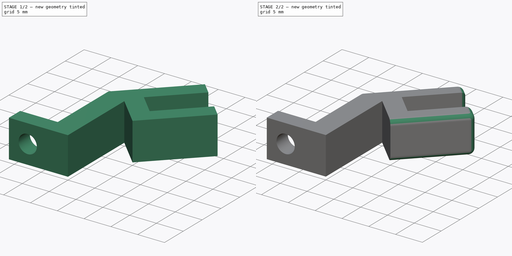
[diagram: build sequence overview — one tinted view per stage of 2, left to right]
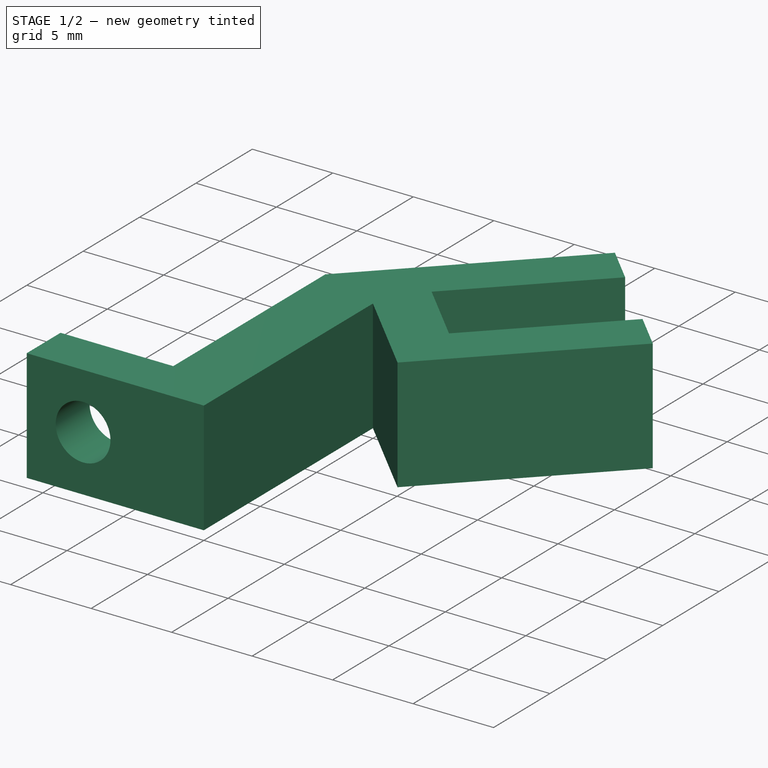
[diagram: stage 1 of 2 — iso view after this stage's code; geometry added in this stage tinted green]
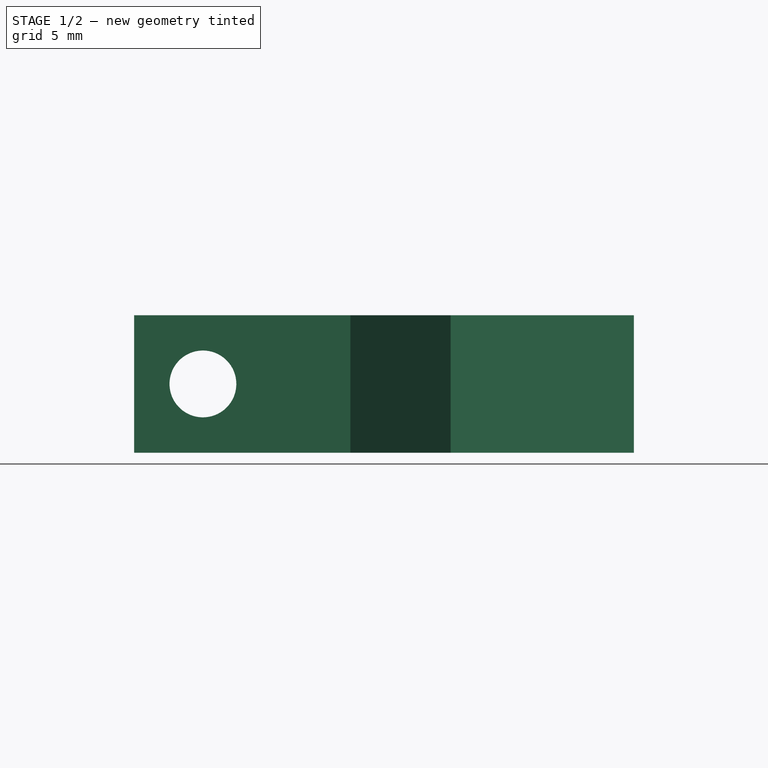
[diagram: stage 1 of 2 — front view after this stage's code; geometry added in this stage tinted green]
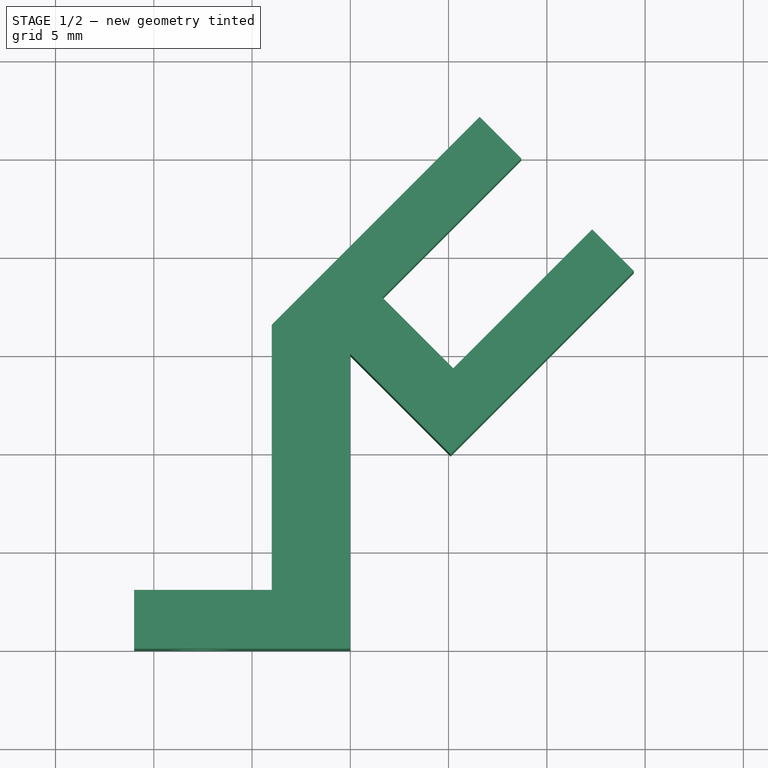
[diagram: stage 1 of 2 — top view after this stage's code; geometry added in this stage tinted green]
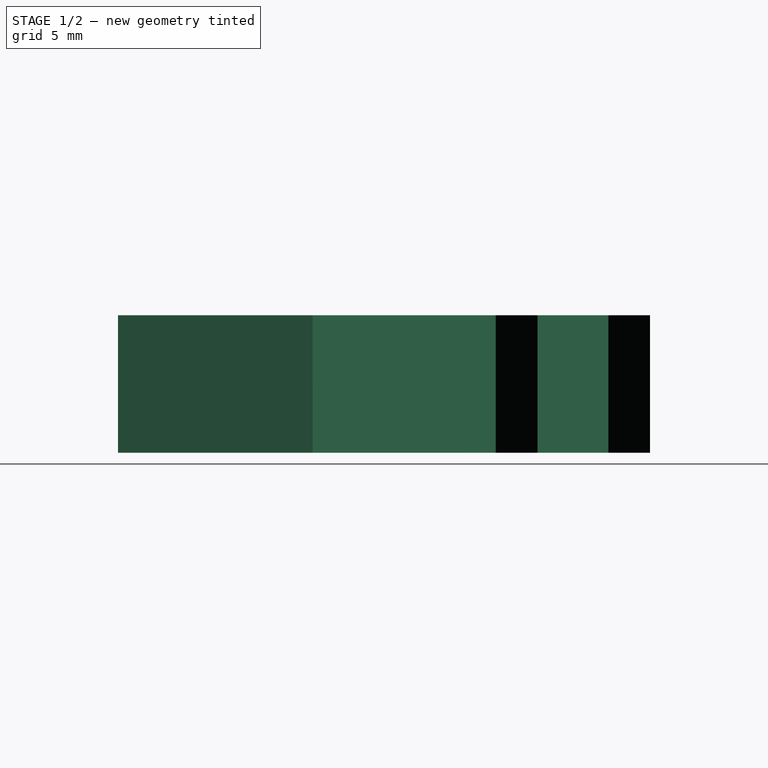
[diagram: stage 1 of 2 — right view after this stage's code; geometry added in this stage tinted green]
FCSTD DOCUMENT  (FreeCAD 0.16R6707 (Git))
Label: spindle counter mount
License: All rights reserved
LicenseURL: http://en.wikipedia.org/wiki/All_rights_reserved
objects: Sketcher::SketchObject×2, PartDesign::Pad×1, PartDesign::Pocket×1, PartDesign::Fillet×1
note: 7 computed .brp shape members not serialized (recipe doc carries the construction recipe); baked Part::Feature solids carry a one-line shape summary decoded from their .brp

FEATURE [Sketcher::SketchObject] Sketch
  sketch-geometry (13):
    g0: LineSegment StartX=-4 StartY=3 StartZ=0 EndX=-4 EndY=16.4946 EndZ=0
    g1: LineSegment StartX=-4 StartY=16.4946 StartZ=0 EndX=6.57885 EndY=27.0735 EndZ=0
    g2: LineSegment StartX=6.57885 StartY=27.0735 StartZ=0 EndX=8.70017 EndY=24.9522 EndZ=0
    g3: LineSegment StartX=8.70017 StartY=24.9522 StartZ=0 EndX=1.6291 EndY=17.8811 EndZ=0
    g4: LineSegment StartX=1.6291 StartY=17.8811 StartZ=0 EndX=5.23535 EndY=14.2748 EndZ=0
    g5: LineSegment StartX=5.23535 StartY=14.2748 StartZ=0 EndX=12.3064 EndY=21.3459 EndZ=0
    g6: LineSegment StartX=12.3064 StartY=21.3459 StartZ=0 EndX=14.4277 EndY=19.2246 EndZ=0
    g7: LineSegment StartX=14.4277 StartY=19.2246 StartZ=0 EndX=5.10157 EndY=9.89843 EndZ=0
    g8: LineSegment StartX=5.10157 StartY=9.89843 StartZ=0 EndX=0 EndY=15 EndZ=0
    g9: LineSegment StartX=0 StartY=15 StartZ=0 EndX=0 EndY=0 EndZ=0
    g10: LineSegment StartX=-4 StartY=3 StartZ=0 EndX=-11 EndY=3 EndZ=0
    g11: LineSegment StartX=-11 StartY=3 StartZ=0 EndX=-11 EndY=0 EndZ=0
    g12: LineSegment StartX=-11 StartY=0 StartZ=0 EndX=0 EndY=0 EndZ=0
  constraints (33):
    c: Vertical(g0)
    c: Coincident(g0,g1)
    c: Coincident(g1,g2)
    c: Coincident(g2,g3)
    c: Coincident(g3,g4)
    c: Coincident(g4,g5)
    c: Coincident(g5,g6)
    c: Coincident(g6,g7)
    c: Distance(g3) = 10
    c: Equal(g5,g3)
    c: Parallel(g1,g3)
    c: Parallel(g5,g7)
    c: Parallel(g3,g5)
    c: Distance(g4) = 5.1
    c: Angle(g4,g3) = 1.5708
    c: Angle(g2,g3) = 1.5708
    c: Distance(g2) = 3
    c: Angle(g5,g6) = 1.5708
    c: Distance(g6) = 3
    c: Angle(g0,g1) = 2.35619
    c: Coincident(g7,g8)
    c: Coincident(g8,g9)
    c: Coincident(g9,g-1)
    c: Vertical(g9)
    c: Coincident(g0,g10)
    c: Horizontal(g10)
    c: Coincident(g10,g11)
    c: PointOnObject(g11,g-1)
    c: Vertical(g11)
    c: Coincident(g11,g12)
    c: Coincident(g12,g-1)
    c: DistanceY(g11,g11) = 3
    c: Angle(g7,g8) = 1.5708
FEATURE [PartDesign::Pad] Pad
  Length = 7
  Length2 = 100
  Sketch = -> Sketch
  Type = 0
FEATURE [Sketcher::SketchObject] Sketch001
  Placement = pos=(0,3,0) rot=(0,0.707107,0.707107;3.14159rad)
  Support = -> Pad [Face13]
  sketch-geometry (1):
    g0: Circle CenterX=7.50021 CenterY=3.50348 CenterZ=0 NormalX=0 NormalY=0 NormalZ=1 Radius=1.7
  constraints (1):
    c: Radius(g0) = 1.7
FEATURE [PartDesign::Pocket] Pocket
  Length = 5
  Sketch = -> Sketch001
  Type = 0
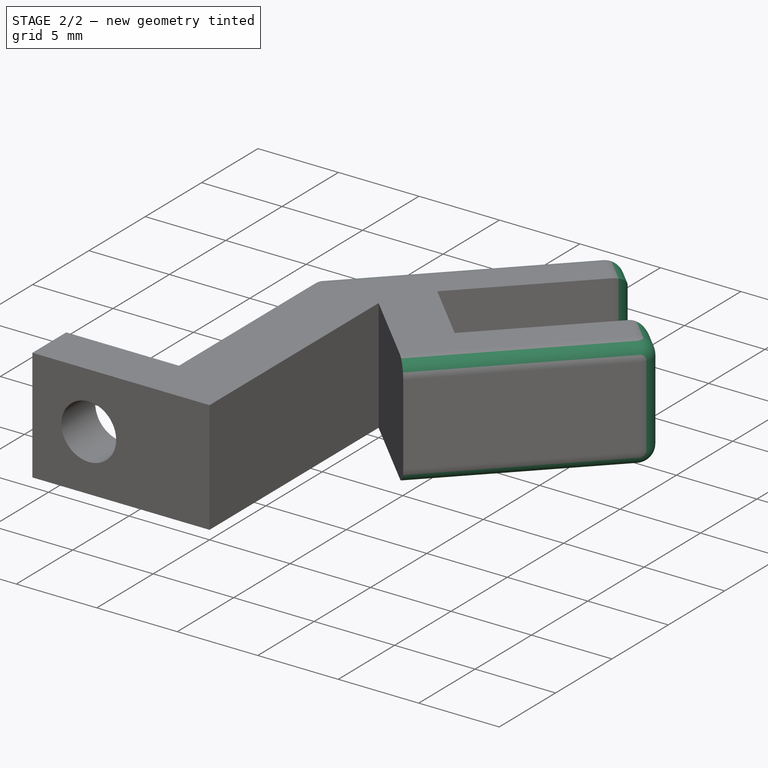
[diagram: stage 2 of 2 — iso view after this stage's code; geometry added in this stage tinted green]
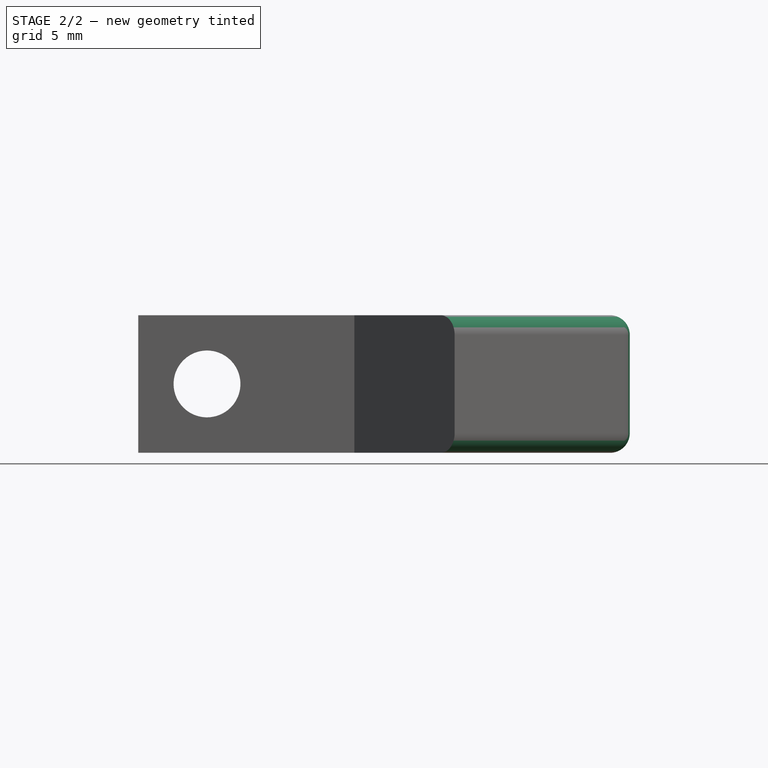
[diagram: stage 2 of 2 — front view after this stage's code; geometry added in this stage tinted green]
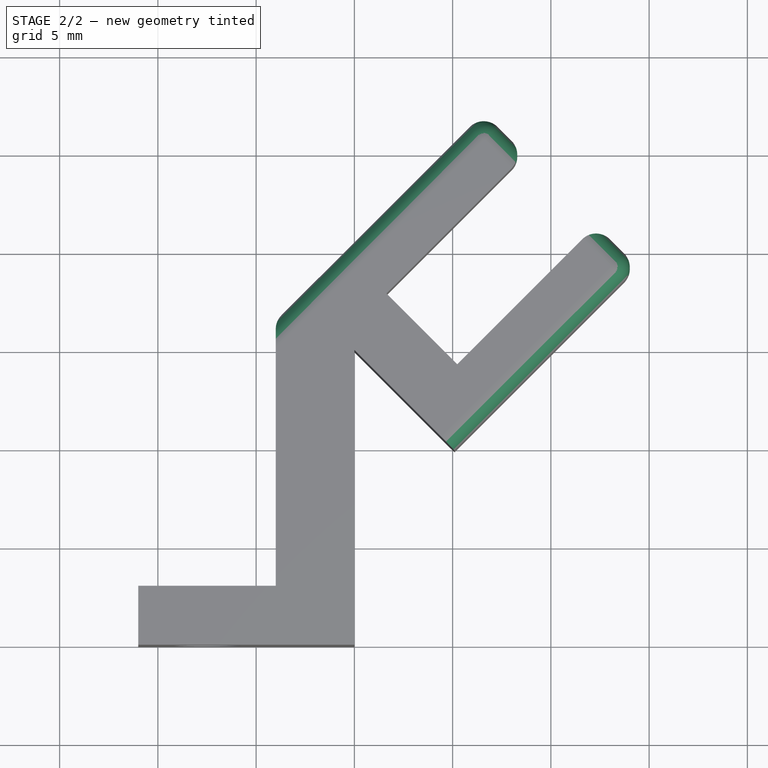
[diagram: stage 2 of 2 — top view after this stage's code; geometry added in this stage tinted green]
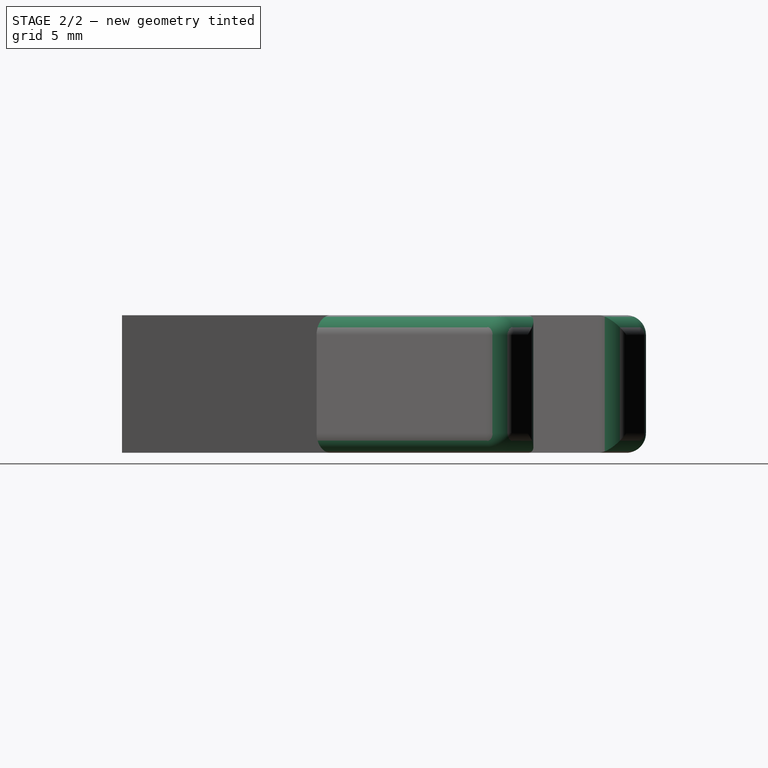
[diagram: stage 2 of 2 — right view after this stage's code; geometry added in this stage tinted green]
FEATURE [PartDesign::Fillet] Fillet
  Base = -> Pocket [Edge35,Edge38,Edge22,Edge11,Edge9,Edge12,Edge10,Edge26,Edge16,Edge39,Edge27,Edge17,Edge2]
  Radius = 1
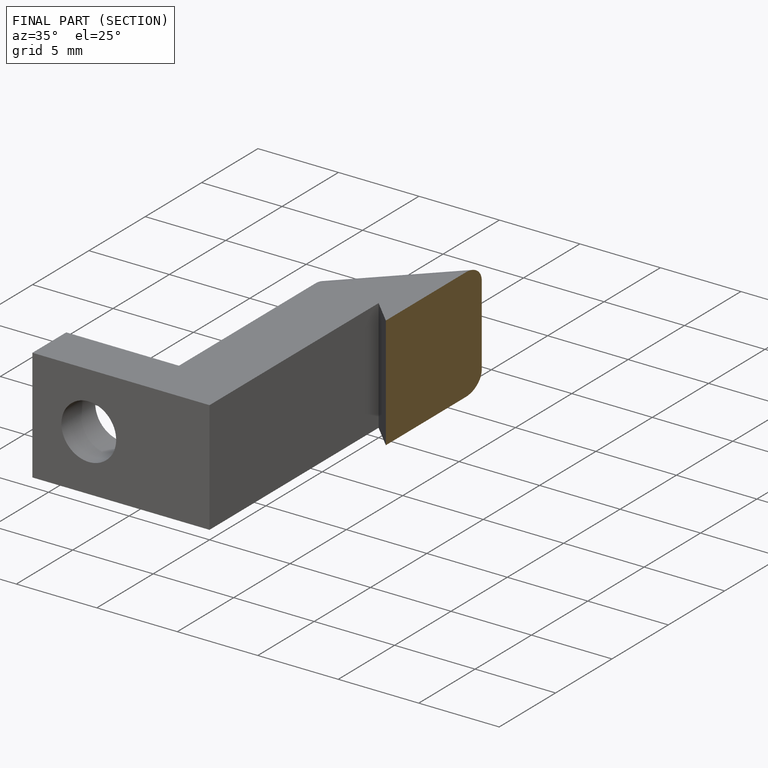
[diagram: finished part — half-section view (interior)]
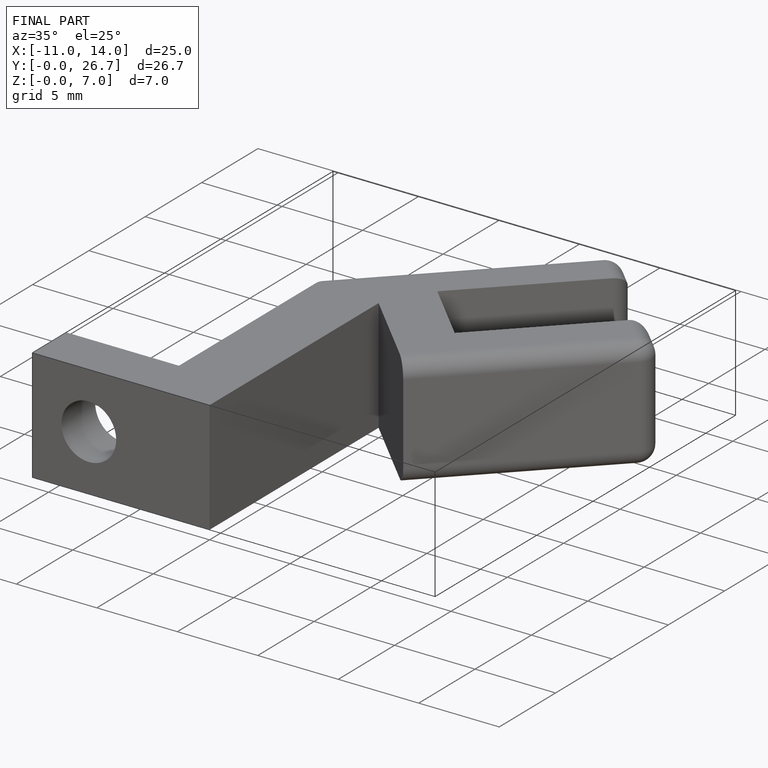
[diagram: finished part — iso view with bounding-box wireframe]
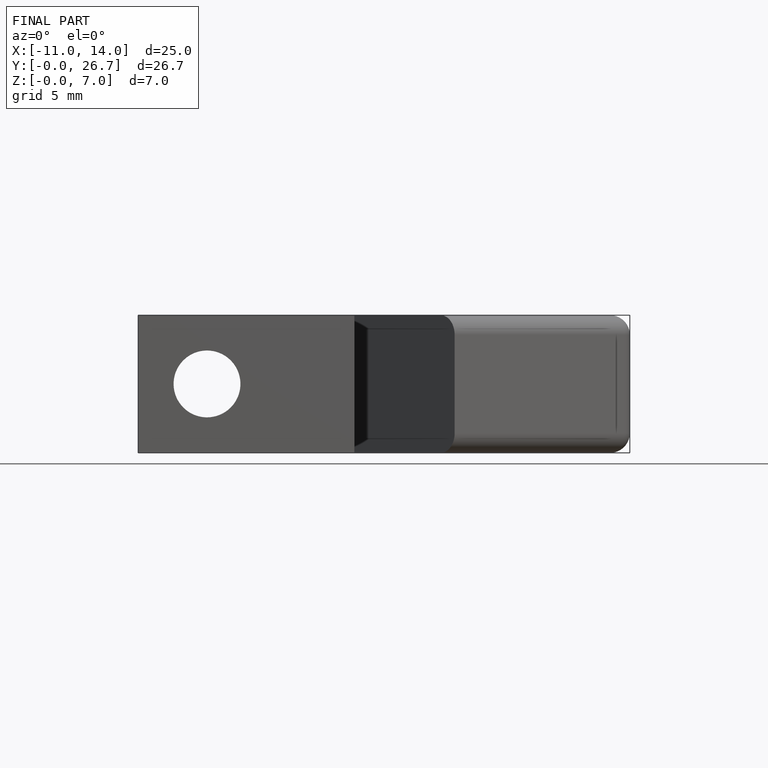
[diagram: finished part — front view with bounding-box wireframe]
